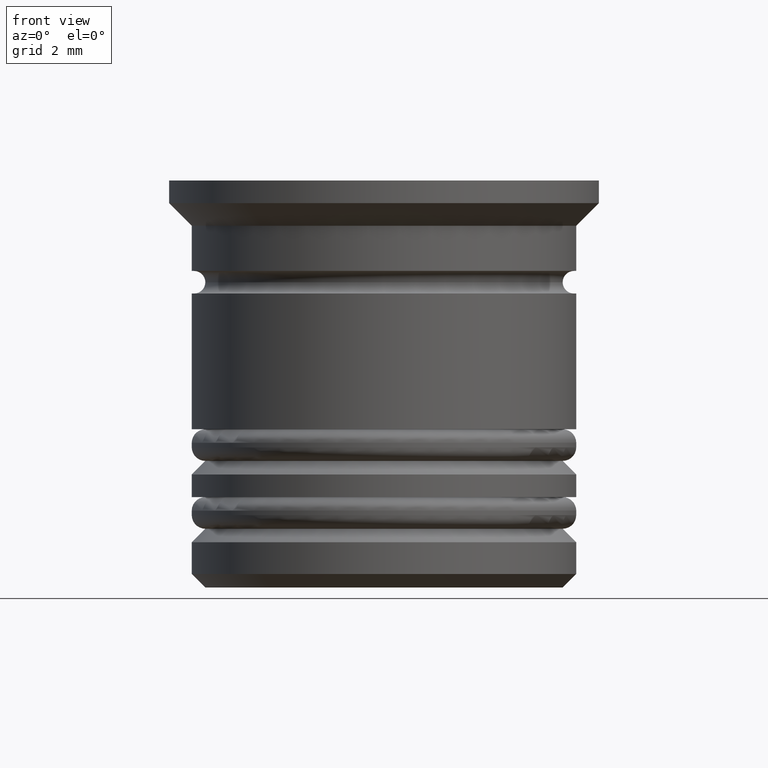
[diagram: clean part render]
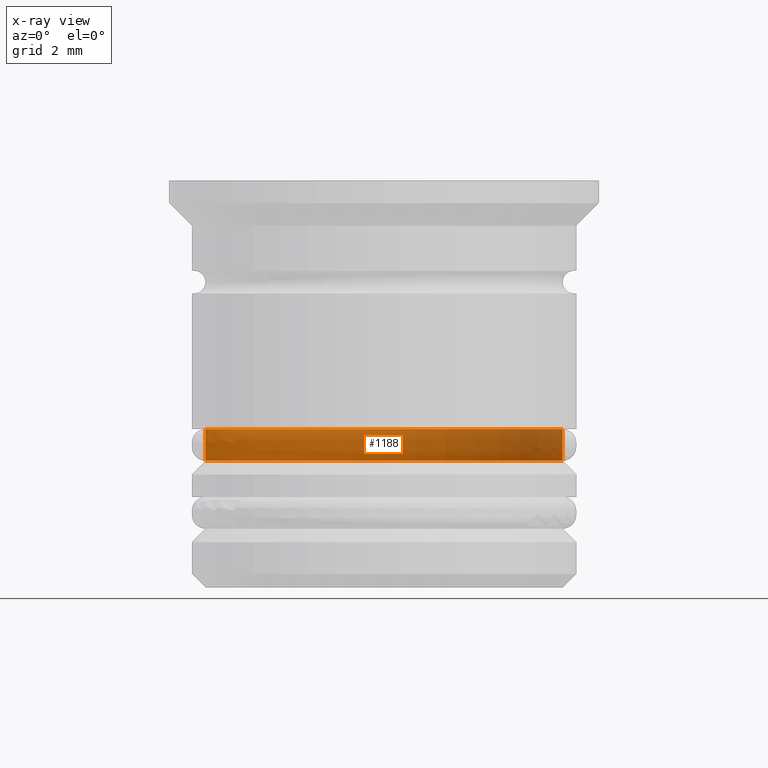
[diagram: x-ray — body ghosted, one internal face saturated and labeled with its STEP entity id]
A machine part, front view, then the same camera in x-ray: the body is ghosted and one INTERNAL B-rep face — a face not visible from any outside direction — is saturated and labeled: STEP entity #1188.
In plain terms, the highlighted cylindrical surface (partial cylindrical patch) has radius 3.95 mm, axis along (-0, -0, 1).
Its self-contained STEP definition (entity closure, byte-faithful):
#13 = EDGE_CURVE ( 'NONE', #279, #377, #791, .T. ) ;
#55 = VECTOR ( 'NONE', #210, 1000.000000000000000 ) ;
#109 = CARTESIAN_POINT ( 'NONE',  ( 3.950000000000000178, 0.000000000000000000, -6.200000000000004619 ) ) ;
#138 = ORIENTED_EDGE ( 'NONE', *, *, #1368, .T. ) ;
#161 = VERTEX_POINT ( 'NONE', #679 ) ;
#185 = CARTESIAN_POINT ( 'NONE',  ( -3.950000000000000178, 4.837354856632045057E-16, 0.000000000000000000 ) ) ;
#195 = CIRCLE ( 'NONE', #1906, 3.950000000000000178 ) ;
#210 = DIRECTION ( 'NONE',  ( -0.000000000000000000, -0.000000000000000000, 1.000000000000000000 ) ) ;
#234 = CARTESIAN_POINT ( 'NONE',  ( 0.000000000000000000, 0.000000000000000000, -5.499999999999999112 ) ) ;
#279 = VERTEX_POINT ( 'NONE', #109 ) ;
#358 = VERTEX_POINT ( 'NONE', #1469 ) ;
#377 = VERTEX_POINT ( 'NONE', #701 ) ;
#396 = AXIS2_PLACEMENT_3D ( 'NONE', #1116, #809, #1790 ) ;
#520 = EDGE_LOOP ( 'NONE', ( #138, #1286, #1250, #1202 ) ) ;
#654 = FACE_OUTER_BOUND ( 'NONE', #520, .T. ) ;
#679 = CARTESIAN_POINT ( 'NONE',  ( -3.950000000000000178, 4.837354856632045057E-16, -6.200000000000004619 ) ) ;
#685 = DIRECTION ( 'NONE',  ( 1.000000000000000000, 0.000000000000000000, 0.000000000000000000 ) ) ;
#701 = CARTESIAN_POINT ( 'NONE',  ( 3.950000000000000178, 0.000000000000000000, -5.499999999999999112 ) ) ;
#739 = VECTOR ( 'NONE', #1890, 1000.000000000000000 ) ;
#759 = AXIS2_PLACEMENT_3D ( 'NONE', #234, #837, #685 ) ;
#766 = CARTESIAN_POINT ( 'NONE',  ( 3.950000000000000178, 0.000000000000000000, 0.000000000000000000 ) ) ;
#791 = LINE ( 'NONE', #766, #739 ) ;
#809 = DIRECTION ( 'NONE',  ( -0.000000000000000000, -0.000000000000000000, 1.000000000000000000 ) ) ;
#837 = DIRECTION ( 'NONE',  ( -0.000000000000000000, -0.000000000000000000, 1.000000000000000000 ) ) ;
#851 = DIRECTION ( 'NONE',  ( -1.000000000000000000, 0.000000000000000000, 0.000000000000000000 ) ) ;
#940 = DIRECTION ( 'NONE',  ( -0.000000000000000000, -0.000000000000000000, 1.000000000000000000 ) ) ;
#985 = CYLINDRICAL_SURFACE ( 'NONE', #396, 3.950000000000000178 ) ;
#1116 = CARTESIAN_POINT ( 'NONE',  ( 0.000000000000000000, 0.000000000000000000, 0.000000000000000000 ) ) ;
#1188 = ADVANCED_FACE ( 'NONE', ( #654 ), #985, .T. ) ;
#1202 = ORIENTED_EDGE ( 'NONE', *, *, #13, .F. ) ;
#1250 = ORIENTED_EDGE ( 'NONE', *, *, #1625, .F. ) ;
#1286 = ORIENTED_EDGE ( 'NONE', *, *, #1357, .T. ) ;
#1357 = EDGE_CURVE ( 'NONE', #161, #358, #1777, .T. ) ;
#1368 = EDGE_CURVE ( 'NONE', #279, #161, #195, .T. ) ;
#1469 = CARTESIAN_POINT ( 'NONE',  ( -3.950000000000000178, 4.837354856632045057E-16, -5.499999999999999112 ) ) ;
#1625 = EDGE_CURVE ( 'NONE', #377, #358, #1837, .T. ) ;
#1777 = LINE ( 'NONE', #185, #55 ) ;
#1790 = DIRECTION ( 'NONE',  ( 1.000000000000000000, 0.000000000000000000, 0.000000000000000000 ) ) ;
#1837 = CIRCLE ( 'NONE', #759, 3.950000000000000178 ) ;
#1859 = CARTESIAN_POINT ( 'NONE',  ( 0.000000000000000000, 0.000000000000000000, -6.200000000000004619 ) ) ;
#1890 = DIRECTION ( 'NONE',  ( -0.000000000000000000, -0.000000000000000000, 1.000000000000000000 ) ) ;
#1906 = AXIS2_PLACEMENT_3D ( 'NONE', #1859, #940, #851 ) ;